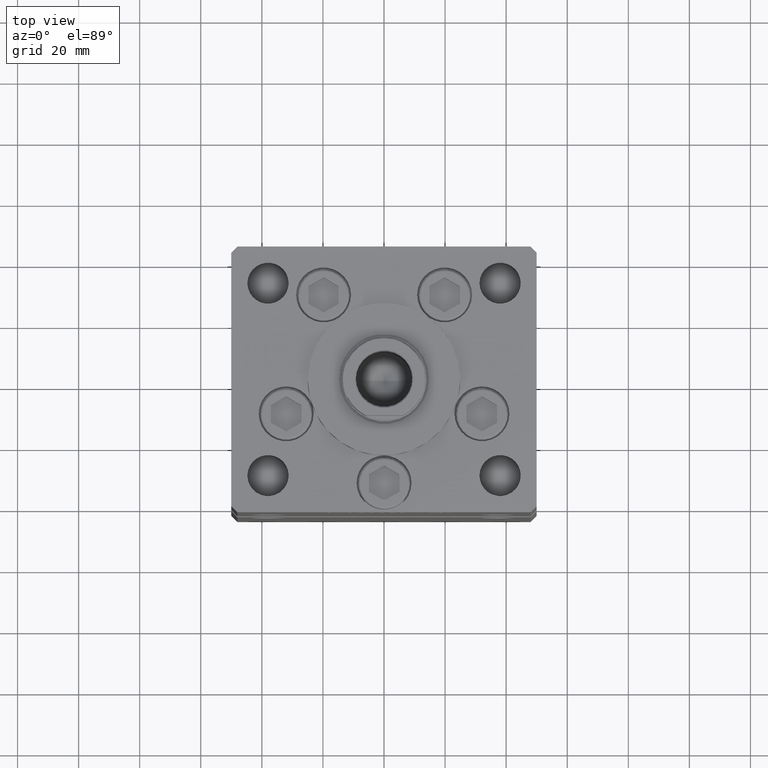
[diagram: clean part render]
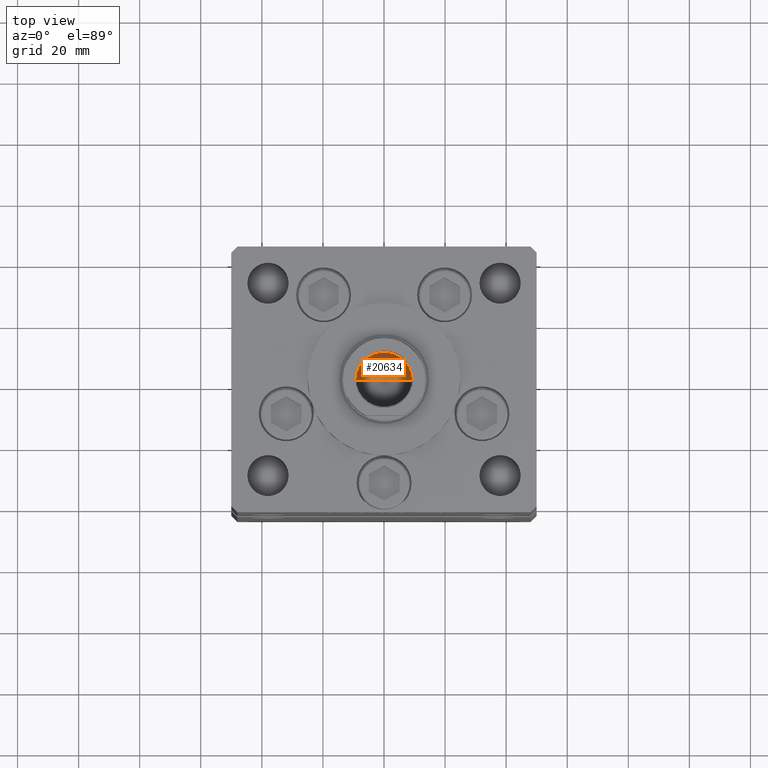
[diagram: same view with one face highlighted and labeled with its STEP entity id]
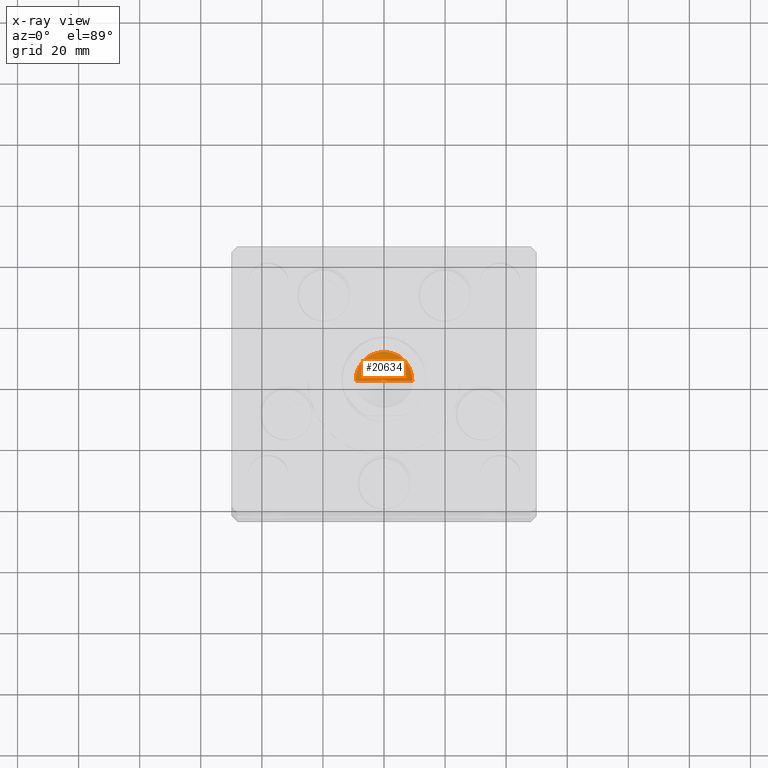
[diagram: x-ray of the same camera — body ghosted, the highlighted face saturated]
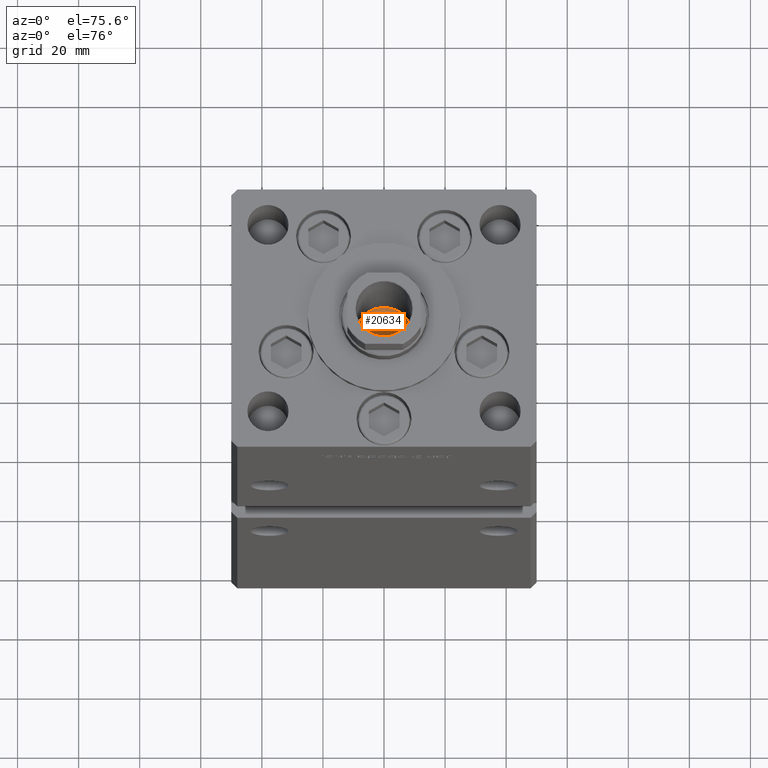
[diagram: same view with one face highlighted and labeled with its STEP entity id]
A machine part, top view. The second image highlights one B-rep face of the part: STEP entity #20634.
The next image is the same camera in x-ray: the body ghosted, the highlighted face saturated — about 0% of this face is hidden behind the body in this view.
A second angle (auxiliary view) of the same face is appended — the face is thin or edge-on in the first view.
In plain terms, the highlighted conical surface has half-angle 59 deg.
Its self-contained STEP definition (entity closure, byte-faithful):
#3315 = DIRECTION ( 'NONE',  ( -0.000000000000000000, -0.000000000000000000, 1.000000000000000000 ) ) ;
#5955 = LINE ( 'NONE', #17309, #6202 ) ;
#6202 = VECTOR ( 'NONE', #18314, 1000.000000000000000 ) ;
#7598 = VERTEX_POINT ( 'NONE', #23359 ) ;
#9790 = EDGE_LOOP ( 'NONE', ( #21988, #31894, #41624 ) ) ;
#10860 = CARTESIAN_POINT ( 'NONE',  ( 0.000000000000000000, 0.000000000000000000, 130.2500000000000000 ) ) ;
#12233 = VERTEX_POINT ( 'NONE', #17209 ) ;
#13624 = DIRECTION ( 'NONE',  ( 1.000000000000000000, 0.000000000000000000, 0.000000000000000000 ) ) ;
#13983 = CONICAL_SURFACE ( 'NONE', #19115, 9.249999999999994671, 1.029744258676653423 ) ;
#17209 = CARTESIAN_POINT ( 'NONE',  ( -1.046994375366439223E-14, 0.000000000000000000, 124.6920392739950643 ) ) ;
#17309 = CARTESIAN_POINT ( 'NONE',  ( -9.249999999999994671, 1.132798289211300909E-15, 130.2500000000000000 ) ) ;
#17329 = EDGE_CURVE ( 'NONE', #7598, #47716, #24907, .T. ) ;
#18314 = DIRECTION ( 'NONE',  ( -0.8571673007021117785, 1.049727191138617956E-16, 0.5150380749100550437 ) ) ;
#19115 = AXIS2_PLACEMENT_3D ( 'NONE', #10860, #3315, #19187 ) ;
#19187 = DIRECTION ( 'NONE',  ( 1.000000000000000000, 0.000000000000000000, 0.000000000000000000 ) ) ;
#19401 = LINE ( 'NONE', #35827, #33661 ) ;
#20634 = ADVANCED_FACE ( 'NONE', ( #36402 ), #13983, .F. ) ;
#21988 = ORIENTED_EDGE ( 'NONE', *, *, #53139, .F. ) ;
#23359 = CARTESIAN_POINT ( 'NONE',  ( 9.249999999999994671, 0.000000000000000000, 130.2500000000000000 ) ) ;
#24907 = CIRCLE ( 'NONE', #42116, 9.249999999999994671 ) ;
#26499 = CARTESIAN_POINT ( 'NONE',  ( -9.249999999999994671, 1.132798289211300909E-15, 130.2500000000000000 ) ) ;
#31250 = DIRECTION ( 'NONE',  ( 0.8571673007021117785, 0.000000000000000000, 0.5150380749100550437 ) ) ;
#31894 = ORIENTED_EDGE ( 'NONE', *, *, #50432, .T. ) ;
#33661 = VECTOR ( 'NONE', #31250, 1000.000000000000000 ) ;
#35827 = CARTESIAN_POINT ( 'NONE',  ( 9.249999999999994671, 0.000000000000000000, 130.2500000000000000 ) ) ;
#36402 = FACE_OUTER_BOUND ( 'NONE', #9790, .T. ) ;
#41624 = ORIENTED_EDGE ( 'NONE', *, *, #17329, .T. ) ;
#42116 = AXIS2_PLACEMENT_3D ( 'NONE', #42948, #46186, #13624 ) ;
#42948 = CARTESIAN_POINT ( 'NONE',  ( 0.000000000000000000, 0.000000000000000000, 130.2500000000000000 ) ) ;
#46186 = DIRECTION ( 'NONE',  ( -0.000000000000000000, -0.000000000000000000, 1.000000000000000000 ) ) ;
#47716 = VERTEX_POINT ( 'NONE', #26499 ) ;
#50432 = EDGE_CURVE ( 'NONE', #12233, #7598, #19401, .T. ) ;
#53139 = EDGE_CURVE ( 'NONE', #12233, #47716, #5955, .T. ) ;